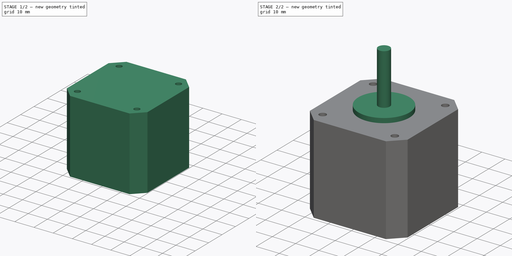
[diagram: build sequence overview — one tinted view per stage of 2, left to right]
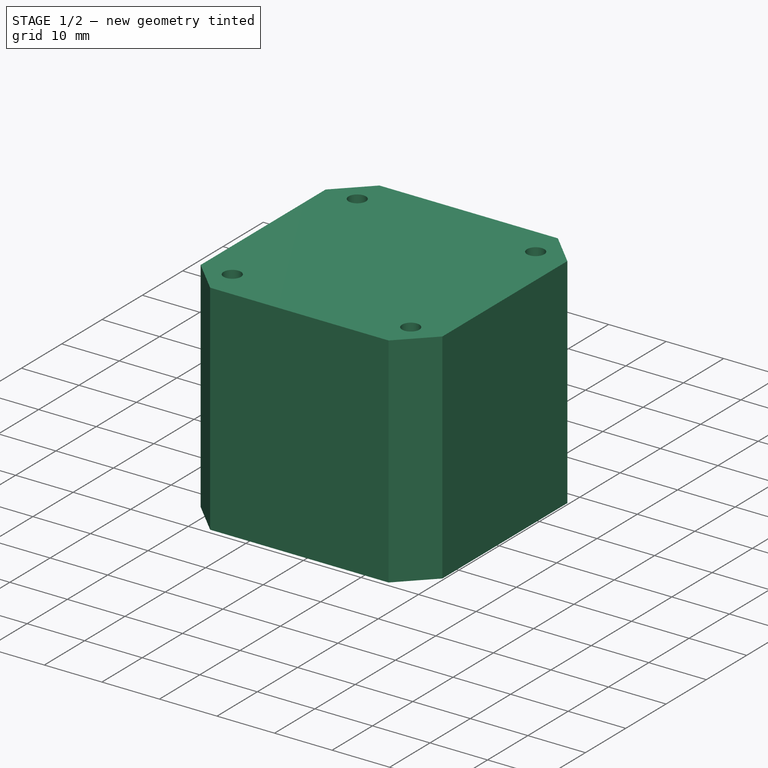
[diagram: stage 1 of 2 — iso view after this stage's code; geometry added in this stage tinted green]
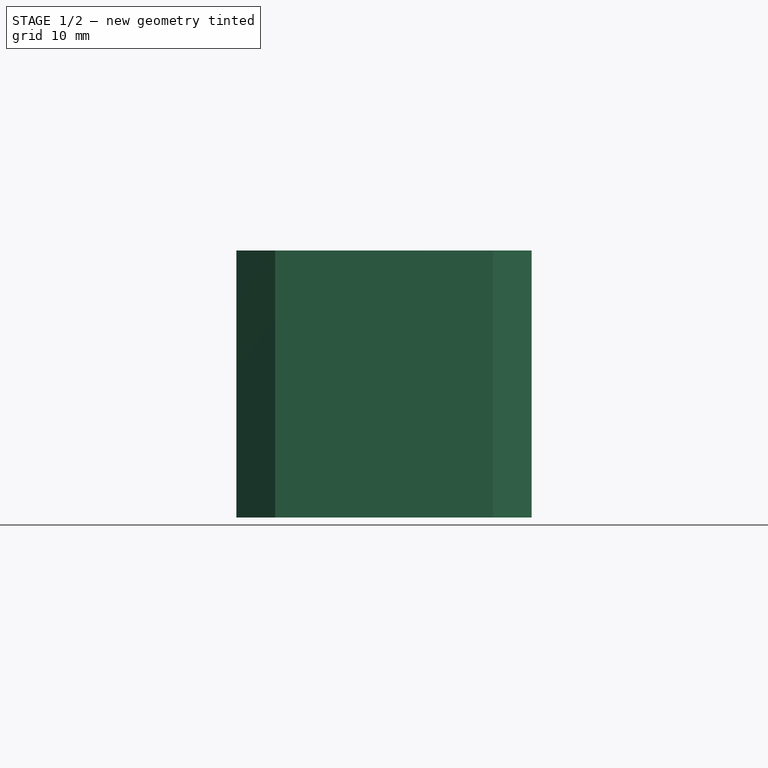
[diagram: stage 1 of 2 — front view after this stage's code; geometry added in this stage tinted green]
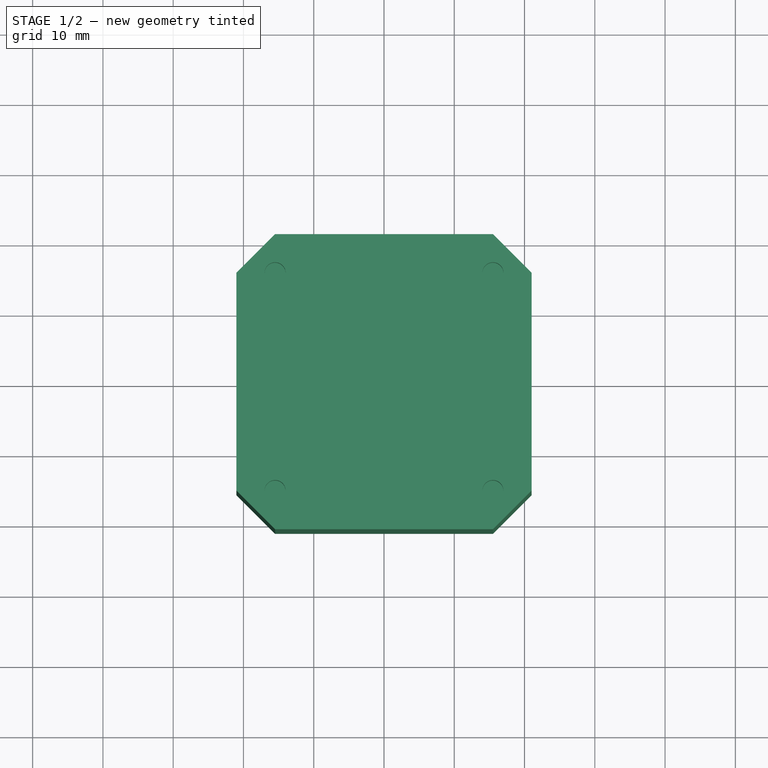
[diagram: stage 1 of 2 — top view after this stage's code; geometry added in this stage tinted green]
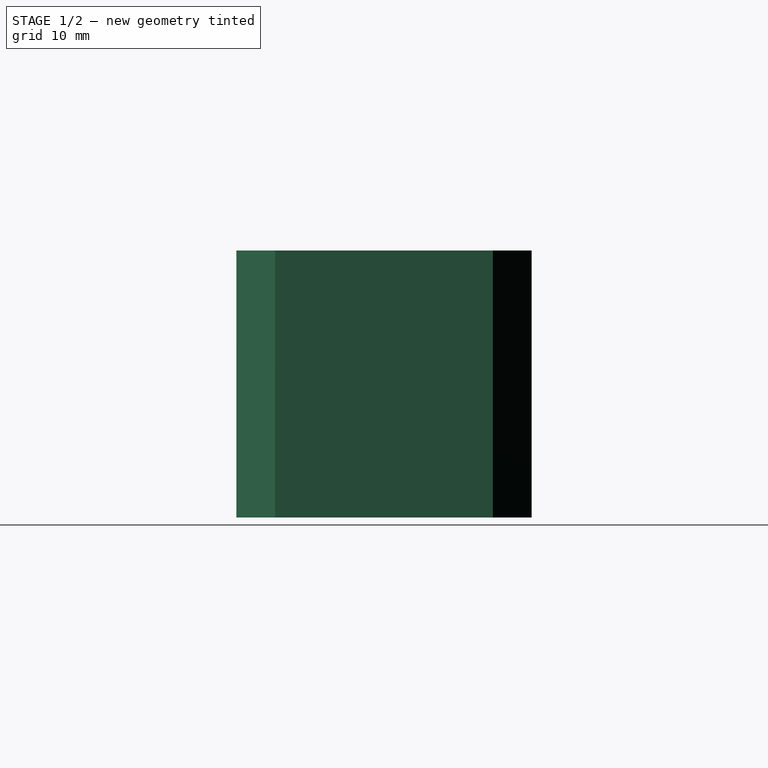
[diagram: stage 1 of 2 — right view after this stage's code; geometry added in this stage tinted green]
FCSTD DOCUMENT  (FreeCAD 0.18R14555 (Git shallow))
Label: nema17-stepper-motor
License: All rights reserved
LicenseURL: http://en.wikipedia.org/wiki/All_rights_reserved
objects: Sketcher::SketchObject×4, PartDesign::Pad×3, PartDesign::Pocket×1, PartDesign::Body×1
note: 13 computed .brp shape members not serialized (recipe doc carries the construction recipe); baked Part::Feature solids carry a one-line shape summary decoded from their .brp

FEATURE [Sketcher::SketchObject] Sketch
  MapMode = 5
  Support = -> [XY_Plane]
  sketch-geometry (14):
    g0: LineSegment StartX=-21 StartY=15.5 StartZ=0 EndX=-15.5 EndY=21 EndZ=0
    g1: LineSegment StartX=-15.5 StartY=21 StartZ=0 EndX=15.5 EndY=21 EndZ=0
    g2: LineSegment StartX=15.5 StartY=21 StartZ=0 EndX=21 EndY=15.5 EndZ=0
    g3: LineSegment StartX=21 StartY=15.5 StartZ=0 EndX=21 EndY=-15.5 EndZ=0
    g4: LineSegment StartX=21 StartY=-15.5 StartZ=0 EndX=15.5 EndY=-21 EndZ=0
    g5: LineSegment StartX=15.5 StartY=-21 StartZ=0 EndX=-15.5 EndY=-21 EndZ=0
    g6: LineSegment StartX=-15.5 StartY=-21 StartZ=0 EndX=-21 EndY=-15.5 EndZ=0
    g7: LineSegment StartX=-21 StartY=-15.5 StartZ=0 EndX=-21 EndY=15.5 EndZ=0
    g8: LineSegment [constr] StartX=-15.5 StartY=21 StartZ=0 EndX=-15.5 EndY=-21 EndZ=0
    g9: LineSegment [constr] StartX=15.5 StartY=-21 StartZ=0 EndX=15.5 EndY=21 EndZ=0
    g10: LineSegment [constr] StartX=-21 StartY=15.5 StartZ=0 EndX=21 EndY=15.5 EndZ=0
    g11: LineSegment [constr] StartX=-21 StartY=-15.5 StartZ=0 EndX=21 EndY=-15.5 EndZ=0
    g12: LineSegment [constr] StartX=-21 StartY=15.5 StartZ=0 EndX=21 EndY=-15.5 EndZ=0
    g13: LineSegment [constr] StartX=-21 StartY=-15.5 StartZ=0 EndX=21 EndY=15.5 EndZ=0
  constraints (36):
    c: Coincident(g0,g1)
    c: Horizontal(g1)
    c: Coincident(g1,g2)
    c: Coincident(g2,g3)
    c: Vertical(g3)
    c: Coincident(g3,g4)
    c: Coincident(g4,g5)
    c: Horizontal(g5)
    c: Coincident(g5,g6)
    c: Coincident(g6,g7)
    c: Coincident(g7,g0)
    c: Vertical(g7)
    c: Coincident(g8,g0)
    c: Coincident(g8,g5)
    c: Vertical(g8)
    c: Coincident(g9,g4)
    c: Coincident(g9,g1)
    c: Coincident(g10,g0)
    c: Coincident(g10,g2)
    c: Horizontal(g10)
    c: Coincident(g11,g6)
    c: Coincident(g11,g3)
    c: Horizontal(g11)
    c: Vertical(g9)
    c: Equal(g7,g1)
    c: Equal(g0,g2)
    c: Equal(g0,g6)
    c: DistanceX(g0,g2) = 42
    c: DistanceY(g5,g0) = 42
    c: DistanceX(g0,g1) = 31
    c: Coincident(g12,g0)
    c: Coincident(g12,g3)
    c: Coincident(g13,g6)
    c: Coincident(g13,g2)
    c: PointOnObject(g-1,g12)
    c: PointOnObject(g-1,g13)
FEATURE [PartDesign::Pad] Pad
  Length = 38
  Length2 = 100
  Profile = -> Sketch
  Type = 0
FEATURE [Sketcher::SketchObject] Sketch001
  ExternalGeometry = -> [Pad]
  MapMode = 5
  Placement = pos=(0,0,38) rot=(0,0,1;0rad)
  Support = -> [Pad]
  sketch-geometry (10):
    g0: LineSegment [constr] StartX=-15.5 StartY=15.5 StartZ=0 EndX=15.5 EndY=15.5 EndZ=0
    g1: LineSegment [constr] StartX=15.5 StartY=15.5 StartZ=0 EndX=15.5 EndY=-15.5 EndZ=0
    g2: LineSegment [constr] StartX=15.5 StartY=-15.5 StartZ=0 EndX=-15.5 EndY=-15.5 EndZ=0
    g3: LineSegment [constr] StartX=-15.5 StartY=-15.5 StartZ=0 EndX=-15.5 EndY=15.5 EndZ=0
    g4: Circle CenterX=-15.5 CenterY=15.5 CenterZ=0 NormalX=0 NormalY=0 NormalZ=1 AngleXU=0 Radius=1.5
    g5: Circle CenterX=15.5 CenterY=15.5 CenterZ=0 NormalX=0 NormalY=0 NormalZ=1 AngleXU=0 Radius=1.5
    g6: Circle CenterX=15.5 CenterY=-15.5 CenterZ=0 NormalX=0 NormalY=0 NormalZ=1 AngleXU=0 Radius=1.5
    g7: Circle CenterX=-15.5 CenterY=-15.5 CenterZ=0 NormalX=0 NormalY=0 NormalZ=1 AngleXU=0 Radius=1.5
    g8: LineSegment [constr] StartX=-15.5 StartY=-21 StartZ=0 EndX=-15.5 EndY=-15.5 EndZ=0
    g9: LineSegment [constr] StartX=-15.5 StartY=21 StartZ=0 EndX=-15.5 EndY=15.5 EndZ=0
  constraints (24):
    c: Coincident(g0,g1)
    c: Coincident(g1,g2)
    c: Coincident(g2,g3)
    c: Coincident(g3,g0)
    c: Horizontal(g0)
    c: Horizontal(g2)
    c: Vertical(g1)
    c: Vertical(g3)
    c: Coincident(g4,g0)
    c: Coincident(g5,g0)
    c: Coincident(g6,g1)
    c: Coincident(g7,g2)
    c: Equal(g4,g7)
    c: Equal(g7,g5)
    c: Equal(g5,g6)
    c: Radius(g4) = 1.5
    c: DistanceX(g0,g0) = 31
    c: Equal(g3,g0)
    c: Coincident(g8,g-4)
    c: Coincident(g8,g7)
    c: Vertical(g8)
    c: Coincident(g9,g-3)
    c: Coincident(g9,g4)
    c: Equal(g9,g8)
FEATURE [PartDesign::Pocket] Pocket
  BaseFeature = -> Pad
  Length = 4.5
  Length2 = 100
  Profile = -> Sketch001
  Type = 0
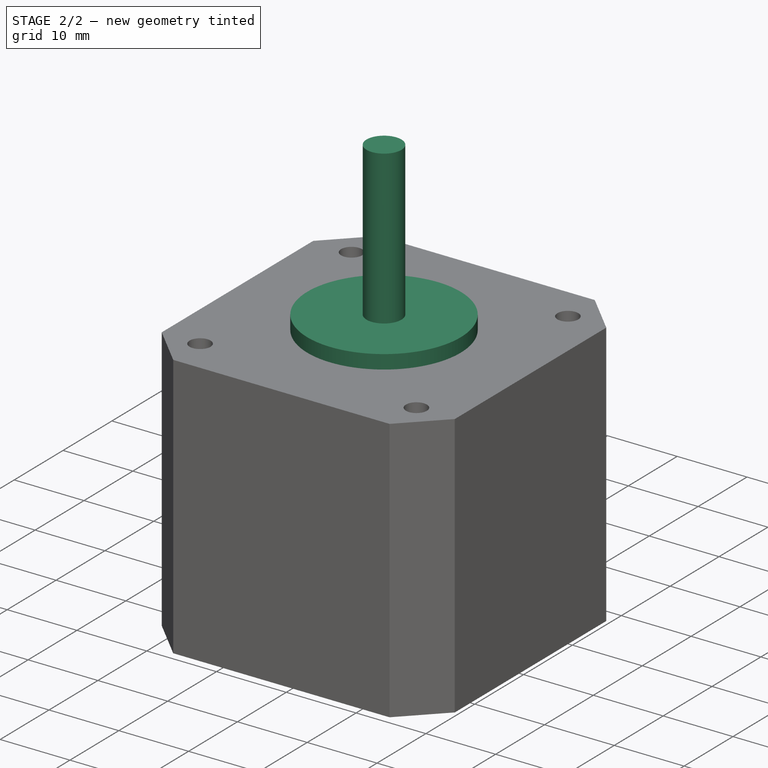
[diagram: stage 2 of 2 — iso view after this stage's code; geometry added in this stage tinted green]
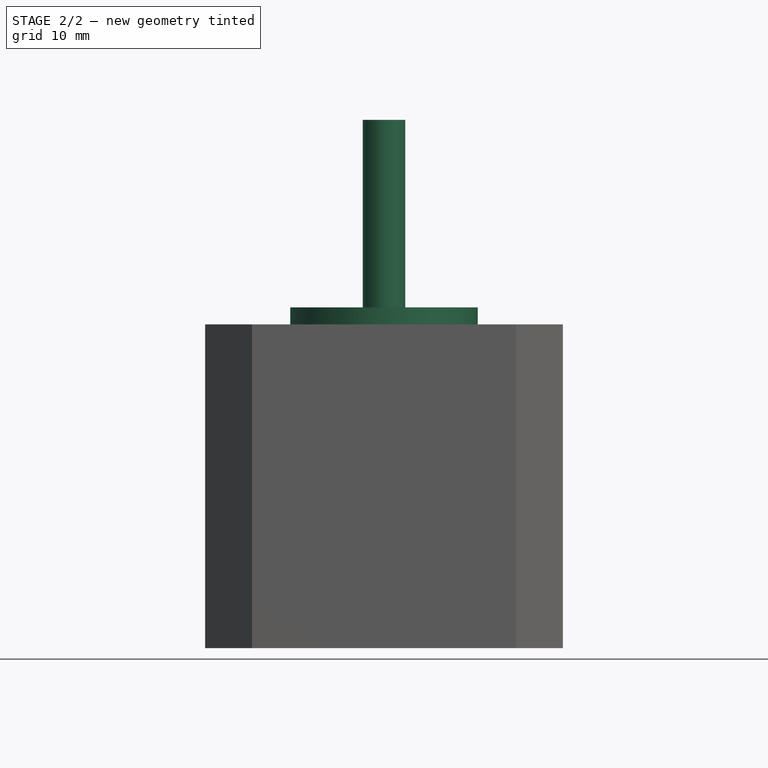
[diagram: stage 2 of 2 — front view after this stage's code; geometry added in this stage tinted green]
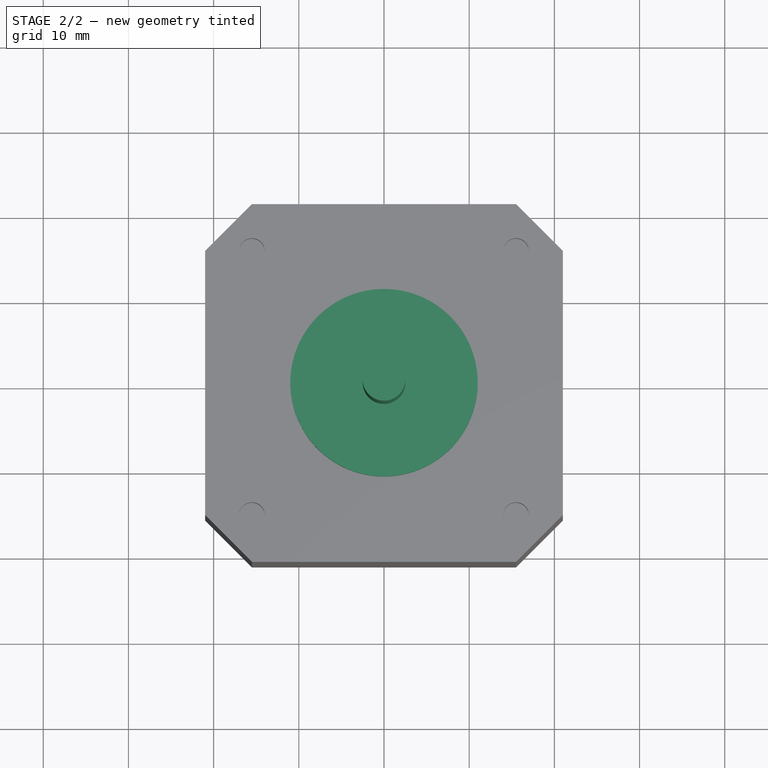
[diagram: stage 2 of 2 — top view after this stage's code; geometry added in this stage tinted green]
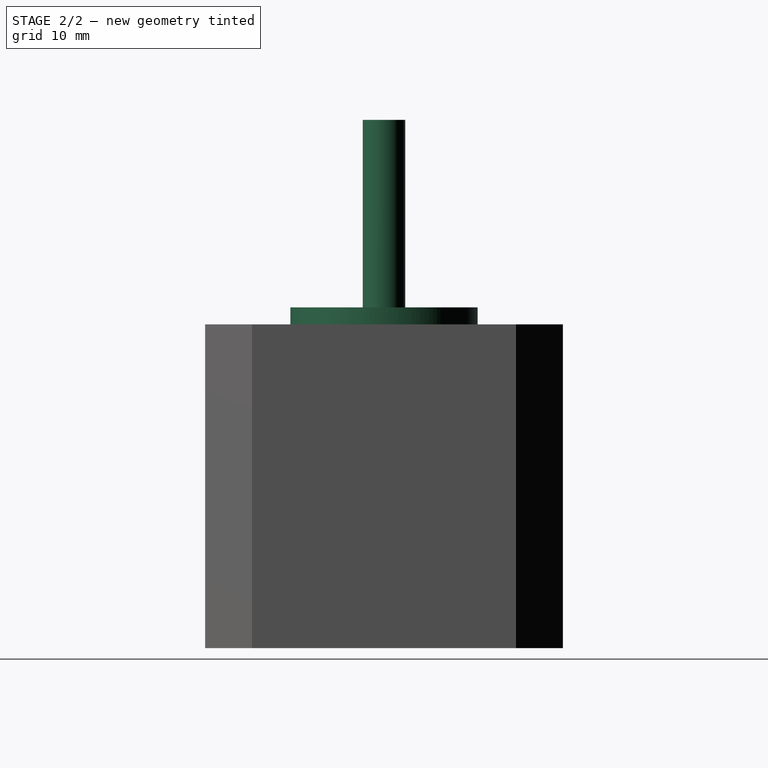
[diagram: stage 2 of 2 — right view after this stage's code; geometry added in this stage tinted green]
FEATURE [Sketcher::SketchObject] Sketch002
  MapMode = 5
  Placement = pos=(0,0,38) rot=(0,0,1;0rad)
  Support = -> [Pocket]
  sketch-geometry (1):
    g0: Circle CenterX=0 CenterY=0 CenterZ=0 NormalX=0 NormalY=0 NormalZ=1 AngleXU=0 Radius=11
  constraints (2):
    c: Coincident(g0,g-1)
    c: Radius(g0) = 11
FEATURE [PartDesign::Pad] Pad001
  BaseFeature = -> Pocket
  Length = 2
  Length2 = 100
  Profile = -> Sketch002
  Type = 0
FEATURE [Sketcher::SketchObject] Sketch003
  MapMode = 5
  Placement = pos=(0,0,40) rot=(0,0,1;0rad)
  Support = -> [Pad001]
  sketch-geometry (1):
    g0: Circle CenterX=0 CenterY=0 CenterZ=0 NormalX=0 NormalY=0 NormalZ=1 AngleXU=0 Radius=2.5
  constraints (2):
    c: Coincident(g0,g-1)
    c: Radius(g0) = 2.5
FEATURE [PartDesign::Pad] Pad002
  BaseFeature = -> Pad001
  Length = 22
  Length2 = 100
  Profile = -> Sketch003
  Type = 0
FEATURE [PartDesign::Body] Body
  Group = -> [Sketch,Pad,Sketch001,Pocket,Sketch002,Pad001,Sketch003,Pad002]
  Origin = -> Origin
  Tip = -> Pad002
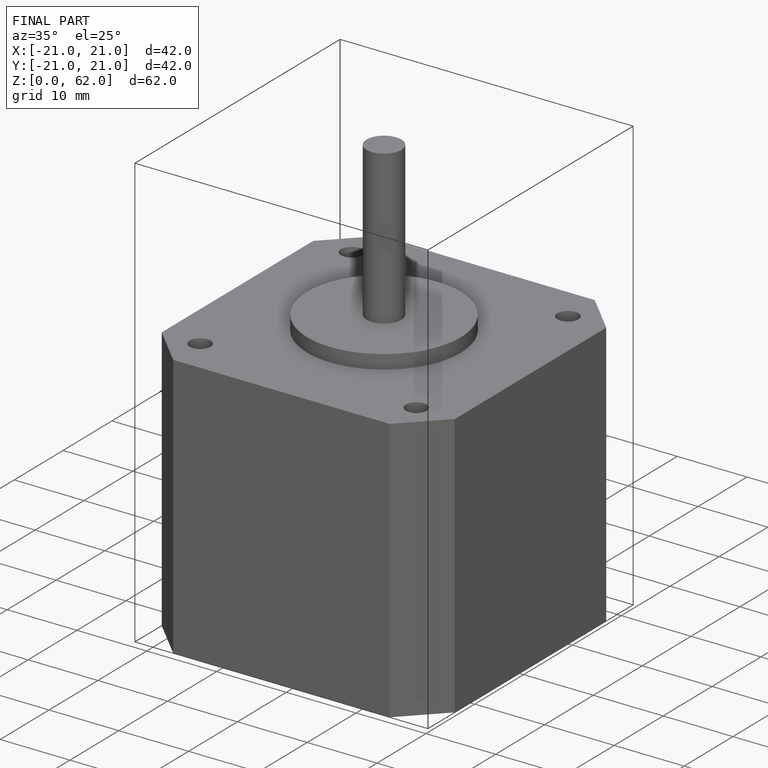
[diagram: finished part — iso view with bounding-box wireframe]
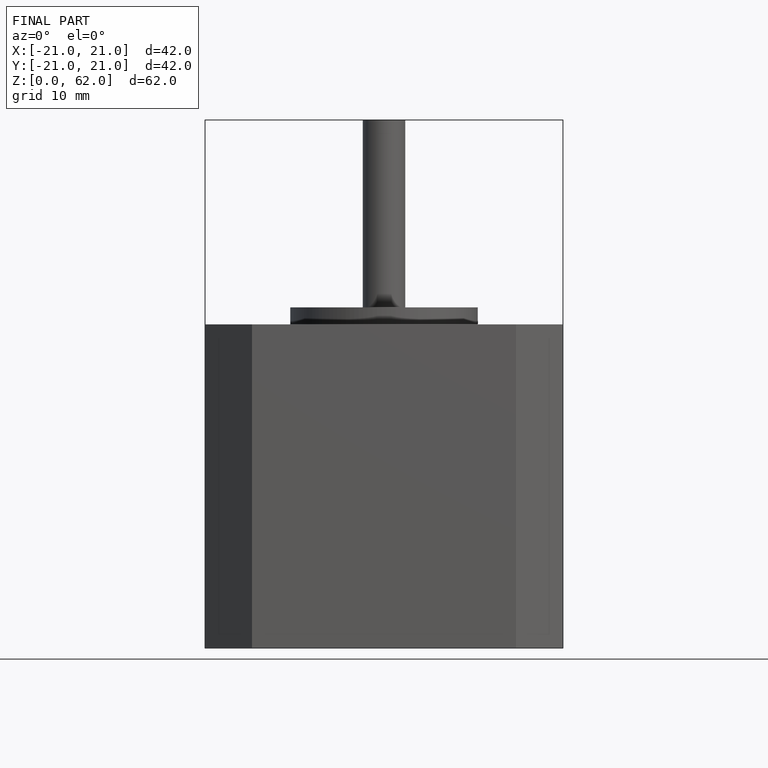
[diagram: finished part — front view with bounding-box wireframe]
